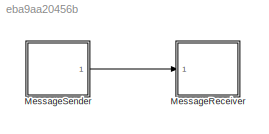
MODEL slx_eba9aa20456b
KIND model
CONFIG AbsTol = auto
CONFIG EnableMultiTasking = on
CONFIG FixedStep = 1
CONFIG MaxStep = auto
CONFIG MinStep = auto
CONFIG RelTol = 1e-3
CONFIG SampleTimeConstraint = Unconstrained
CONFIG Solver = FixedStepDiscrete
CONFIG SolverName = FixedStepDiscrete
CONFIG StartTime = 0.0
CONFIG StopTime = 6
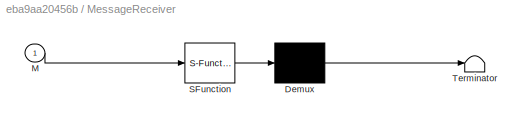
BLOCK [SubSystem] MessageReceiver
  ErrorFcn = Stateflow.Translate.translate
  PermitHierarchicalResolution = ExplicitOnly
  Ports = [1]
  RequestExecContextInheritance = off
  SFBlockType = Chart
  TreatAsAtomicUnit = on
BLOCK [Demux] MessageReceiver/ Demux 
  Outputs = 1
  Ports = [1, 1]
BLOCK [S-Function] MessageReceiver/ SFunction 
  EnableBusSupport = on
  FunctionName = sf_sfun
  InputPortMessageModes = m
  PortCounts = [1 1]
  Ports = [1, 1]
  SFcnIsStateOwnerBlock = off
  SFunctionDeploymentMode = off
  Tag = Stateflow S-Function Messages3_2018a 2
BLOCK [Terminator] MessageReceiver/ Terminator 
BLOCK [Inport] MessageReceiver/M
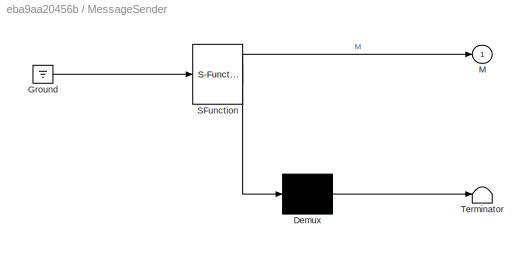
BLOCK [SubSystem] MessageSender
  ErrorFcn = Stateflow.Translate.translate
  PermitHierarchicalResolution = ExplicitOnly
  Ports = [0, 1]
  RequestExecContextInheritance = off
  SFBlockType = Chart
  TreatAsAtomicUnit = on
BLOCK [Demux] MessageSender/ Demux 
  Outputs = 1
  Ports = [1, 1]
BLOCK [Ground] MessageSender/ Ground 
BLOCK [S-Function] MessageSender/ SFunction 
  EnableBusSupport = on
  FunctionName = sf_sfun
  OutputPortMessageModes = n,m
  PortCounts = [1 2]
  Ports = [1, 2]
  SFcnIsStateOwnerBlock = off
  SFunctionDeploymentMode = off
  Tag = Stateflow S-Function Messages3_2018a 1
BLOCK [Terminator] MessageSender/ Terminator 
BLOCK [Outport] MessageSender/M
  VectorParamsAs1DForOutWhenUnconnected = off
LINE MessageSender:1 -> MessageReceiver:1
CHART MessageSender states=2 transitions=1
  STATE_LABEL 'A\nen:\nf("en_A");\nsend(M);'
  STATE_LABEL 'f(s)'
  STATE_LABEL 'SCRIPT:\nfunction f(s)\n  fprintf(s+"\\n");\n'
CHART MessageReceiver states=5 transitions=4
  STATE_LABEL 'A0\nen:f("en_A0");\n'
  STATE_LABEL 'A1\nen:f("en_A1");\n'
  STATE_LABEL 'f(s)'
  STATE_LABEL 'SCRIPT:\nfunction f(s)\n  fprintf(s+"\\n");\n'
  STATE_LABEL 'A2\nen:f("en_A2");\n'
  STATE_LABEL 'A3\nen:f("en_A3");\n'
